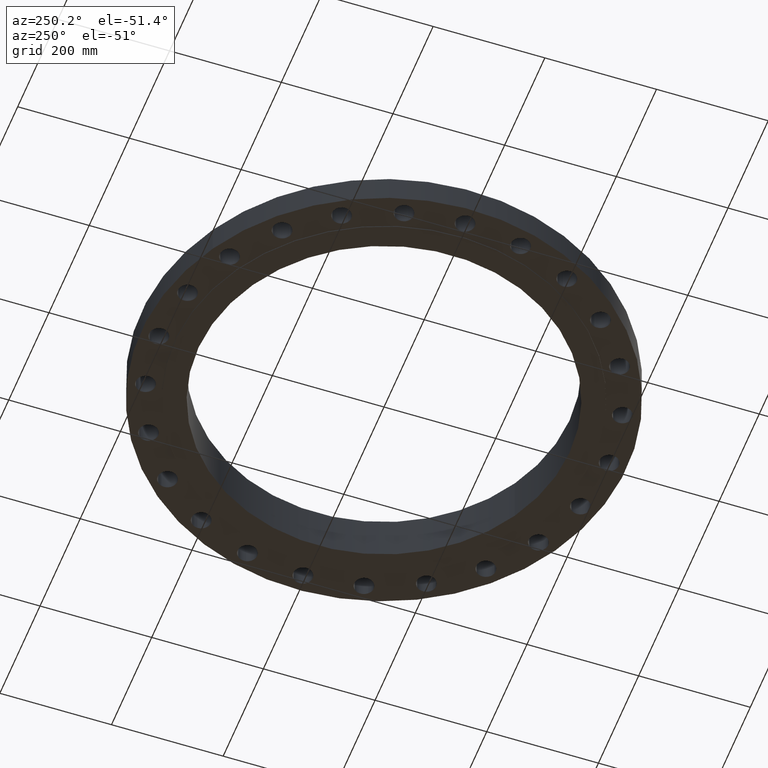
[diagram: clean part render]
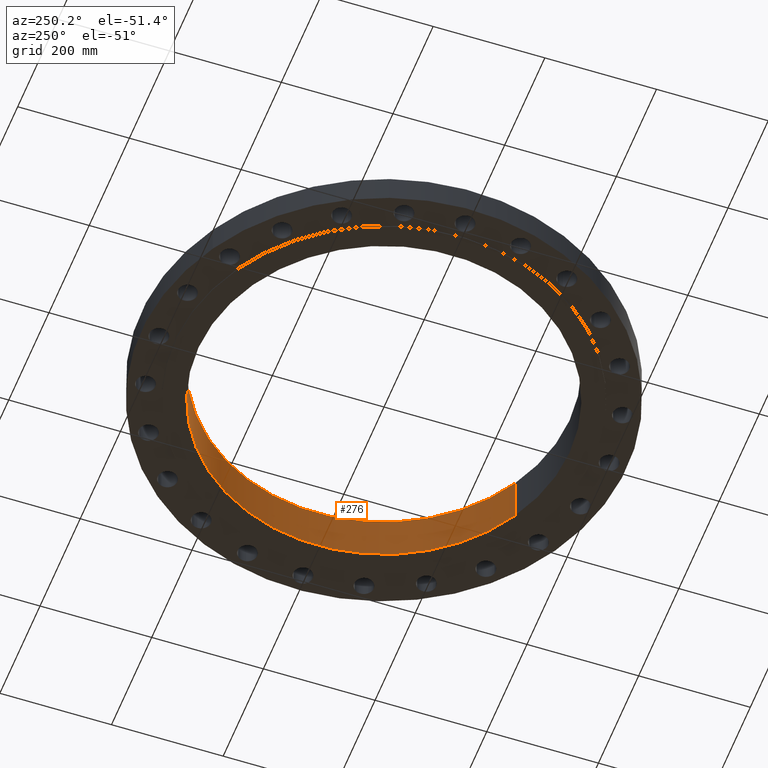
[diagram: same view with one face highlighted and labeled with its STEP entity id]
A machine part, auxiliary view. The second image highlights one B-rep face of the part: STEP entity #276.
In plain terms, the highlighted cylindrical surface (partial cylindrical patch) has radius 332.613 mm, axis along (0, 0, 1).
Its self-contained STEP definition (entity closure, byte-faithful):
#217=AXIS2_PLACEMENT_3D('Circle Axis2P3D',#215,#216,$) ;
#237=AXIS2_PLACEMENT_3D('Cylinder Axis2P3D',#234,#235,#236) ;
#267=AXIS2_PLACEMENT_3D('Circle Axis2P3D',#265,#266,$) ;
#215=CARTESIAN_POINT('Axis2P3D Location',(0.,0.,-0.0625000000002)) ;
#219=CARTESIAN_POINT('Vertex',(6.27807742805,-11.491943648,-0.0625000000003)) ;
#221=CARTESIAN_POINT('Vertex',(-6.27807742805,11.491943648,-0.0625000000003)) ;
#234=CARTESIAN_POINT('Axis2P3D Location',(0.,0.,1.65625000001)) ;
#239=CARTESIAN_POINT('Line Origine',(6.27807742805,-11.491943648,1.65625000001)) ;
#243=CARTESIAN_POINT('Vertex',(6.27807742805,-11.491943648,3.37500000001)) ;
#246=CARTESIAN_POINT('Line Origine',(-6.27807742805,11.491943648,1.65625000001)) ;
#250=CARTESIAN_POINT('Vertex',(-6.27807742805,11.491943648,3.37500000001)) ;
#265=CARTESIAN_POINT('Axis2P3D Location',(0.,0.,3.37500000001)) ;
#216=DIRECTION('Axis2P3D Direction',(0.,0.,0.0393700787402)) ;
#235=DIRECTION('Axis2P3D Direction',(0.,0.,0.0393700787402)) ;
#236=DIRECTION('Axis2P3D XDirection',(0.0188750212049,-0.0345504945626,0.)) ;
#240=DIRECTION('Vector Direction',(0.,0.,0.0393700787402)) ;
#247=DIRECTION('Vector Direction',(0.,0.,0.0393700787402)) ;
#266=DIRECTION('Axis2P3D Direction',(0.,0.,0.0393700787402)) ;
#241=VECTOR('Line Direction',#240,0.0393700787402) ;
#248=VECTOR('Line Direction',#247,0.0393700787402) ;
#271=ORIENTED_EDGE('',*,*,#252,.T.) ;
#272=ORIENTED_EDGE('',*,*,#223,.F.) ;
#273=ORIENTED_EDGE('',*,*,#245,.F.) ;
#274=ORIENTED_EDGE('',*,*,#269,.T.) ;
#276=ADVANCED_FACE('PartBody',(#275),#238,.F.) ;
#218=CIRCLE('generated circle',#217,13.0950000001) ;
#268=CIRCLE('generated circle',#267,13.0950000001) ;
#238=CYLINDRICAL_SURFACE('generated cylinder',#237,13.0950000001) ;
#223=EDGE_CURVE('',#220,#222,#218,.T.) ;
#245=EDGE_CURVE('',#244,#220,#242,.F.) ;
#252=EDGE_CURVE('',#251,#222,#249,.F.) ;
#269=EDGE_CURVE('',#244,#251,#268,.T.) ;
#270=EDGE_LOOP('',(#271,#272,#273,#274)) ;
#275=FACE_OUTER_BOUND('',#270,.T.) ;
#242=LINE('Line',#239,#241) ;
#249=LINE('Line',#246,#248) ;
#220=VERTEX_POINT('',#219) ;
#222=VERTEX_POINT('',#221) ;
#244=VERTEX_POINT('',#243) ;
#251=VERTEX_POINT('',#250) ;